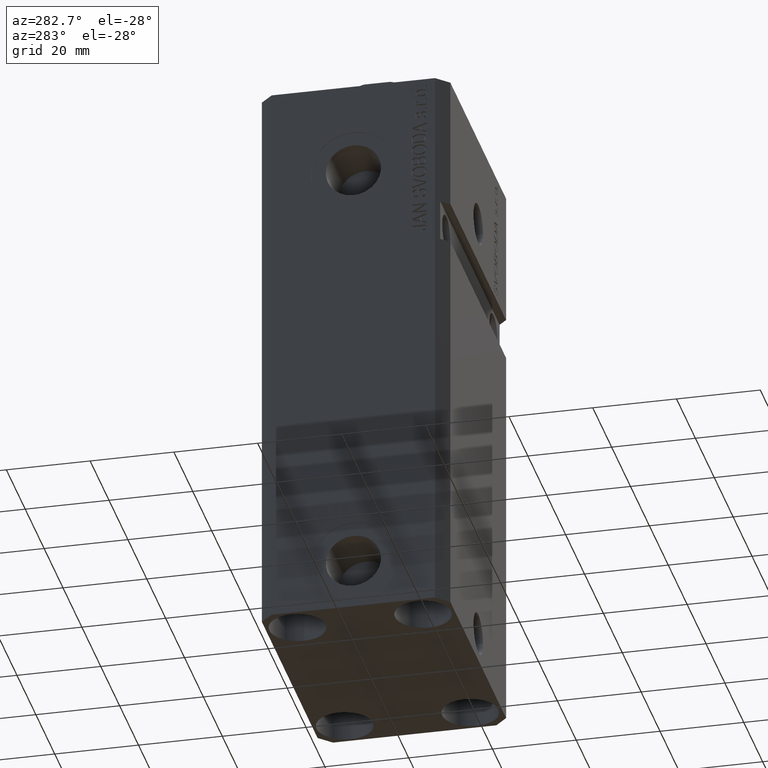
[diagram: clean part render]
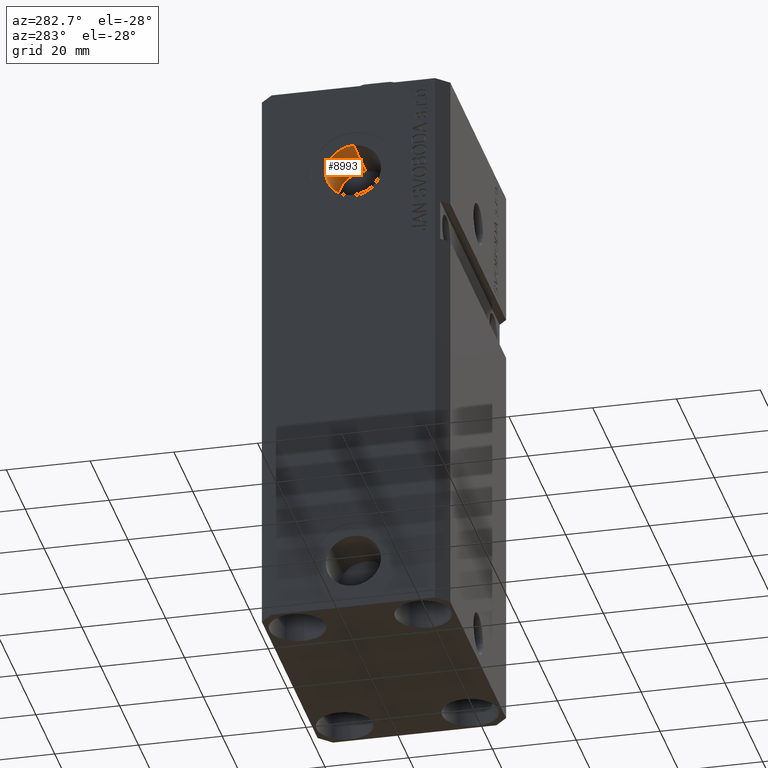
[diagram: same view with one face highlighted and labeled with its STEP entity id]
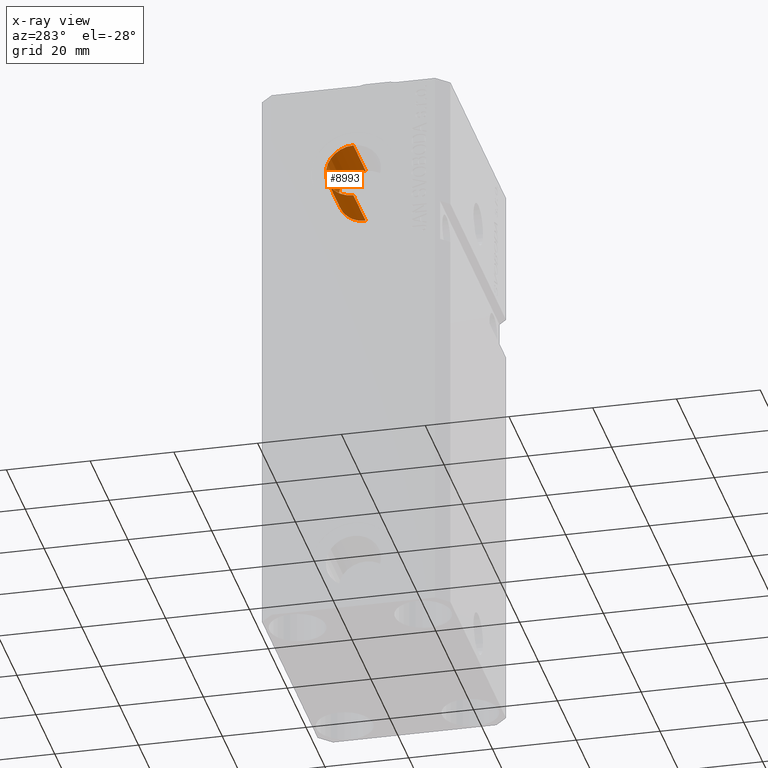
[diagram: x-ray of the same camera — body ghosted, the highlighted face saturated]
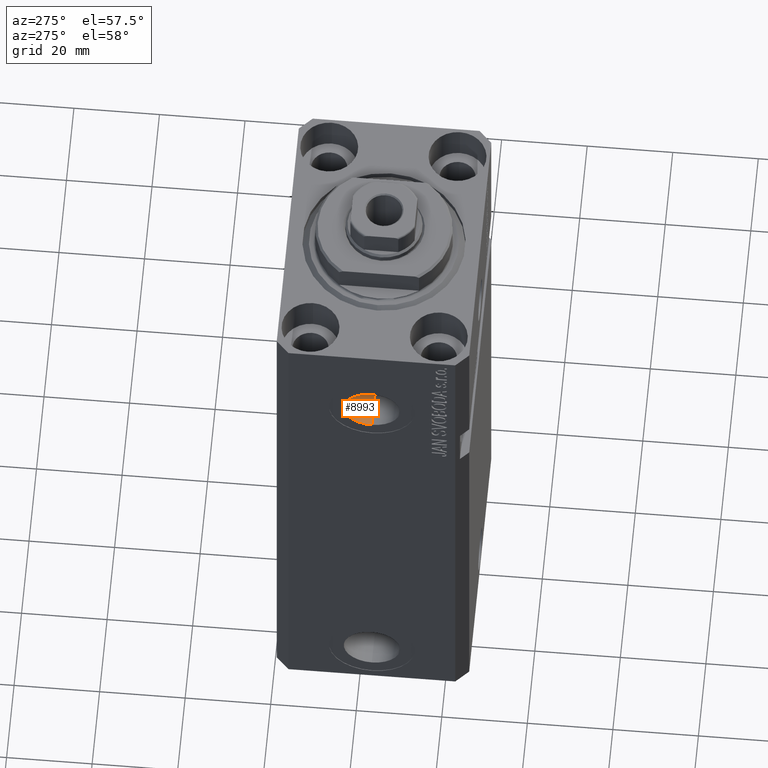
[diagram: same view with one face highlighted and labeled with its STEP entity id]
A machine part, auxiliary view. The second image highlights one B-rep face of the part: STEP entity #8993.
The next image is the same camera in x-ray: the body ghosted, the highlighted face saturated — about 0% of this face is hidden behind the body in this view.
A second angle (auxiliary view) of the same face is appended — the face is thin or edge-on in the first view.
In plain terms, the highlighted cylindrical surface (edge-blend (fillet) strip) has radius 6.58 mm, axis along (-1, -0, -0).
Its self-contained STEP definition (entity closure, byte-faithful):
#1513 = EDGE_CURVE ( 'NONE', #34380, #20980, #42684, .T. ) ;
#2543 = CARTESIAN_POINT ( 'NONE',  ( -32.39999999999650271, 8.058175938389579572E-16, -28.57999999999999829 ) ) ;
#3067 = ORIENTED_EDGE ( 'NONE', *, *, #1513, .T. ) ;
#3771 = VERTEX_POINT ( 'NONE', #16790 ) ;
#6576 = DIRECTION ( 'NONE',  ( -1.000000000000000000, -0.000000000000000000, -0.000000000000000000 ) ) ;
#6957 = VECTOR ( 'NONE', #30138, 1000.000000000000000 ) ;
#8993 = ADVANCED_FACE ( 'NONE', ( #27721 ), #13765, .F. ) ;
#9455 = CARTESIAN_POINT ( 'NONE',  ( -32.39999999999650271, 0.000000000000000000, -22.00000000000000000 ) ) ;
#11902 = ORIENTED_EDGE ( 'NONE', *, *, #40211, .F. ) ;
#12806 = CARTESIAN_POINT ( 'NONE',  ( -19.39999999999650271, 0.000000000000000000, -15.41999999999999993 ) ) ;
#12953 = AXIS2_PLACEMENT_3D ( 'NONE', #20104, #23474, #19667 ) ;
#13492 = DIRECTION ( 'NONE',  ( 0.000000000000000000, 0.000000000000000000, 1.000000000000000000 ) ) ;
#13765 = CYLINDRICAL_SURFACE ( 'NONE', #30001, 6.579999999999999183 ) ;
#16790 = CARTESIAN_POINT ( 'NONE',  ( -19.39999999999650271, 8.058175938389579572E-16, -28.57999999999999829 ) ) ;
#18706 = DIRECTION ( 'NONE',  ( -1.000000000000000000, -0.000000000000000000, -0.000000000000000000 ) ) ;
#19667 = DIRECTION ( 'NONE',  ( 0.000000000000000000, 0.000000000000000000, 1.000000000000000000 ) ) ;
#20104 = CARTESIAN_POINT ( 'NONE',  ( -19.39999999999650271, 0.000000000000000000, -22.00000000000000000 ) ) ;
#20260 = CARTESIAN_POINT ( 'NONE',  ( -32.39999999999650271, 0.000000000000000000, -15.41999999999999993 ) ) ;
#20980 = VERTEX_POINT ( 'NONE', #2543 ) ;
#21489 = CARTESIAN_POINT ( 'NONE',  ( -19.39999999999650271, 0.000000000000000000, -15.41999999999999993 ) ) ;
#23190 = DIRECTION ( 'NONE',  ( -1.000000000000000000, 0.000000000000000000, 0.000000000000000000 ) ) ;
#23474 = DIRECTION ( 'NONE',  ( -1.000000000000000000, 0.000000000000000000, 0.000000000000000000 ) ) ;
#24111 = DIRECTION ( 'NONE',  ( 0.000000000000000000, 0.000000000000000000, 1.000000000000000000 ) ) ;
#25773 = EDGE_CURVE ( 'NONE', #40184, #34380, #37497, .T. ) ;
#27721 = FACE_OUTER_BOUND ( 'NONE', #34425, .T. ) ;
#30001 = AXIS2_PLACEMENT_3D ( 'NONE', #30428, #6576, #24111 ) ;
#30107 = EDGE_CURVE ( 'NONE', #3771, #20980, #33068, .T. ) ;
#30138 = DIRECTION ( 'NONE',  ( -1.000000000000000000, -0.000000000000000000, -0.000000000000000000 ) ) ;
#30428 = CARTESIAN_POINT ( 'NONE',  ( -19.39999999999650271, 0.000000000000000000, -22.00000000000000000 ) ) ;
#30457 = ORIENTED_EDGE ( 'NONE', *, *, #25773, .T. ) ;
#32391 = CIRCLE ( 'NONE', #12953, 6.579999999999999183 ) ;
#33068 = LINE ( 'NONE', #43144, #39942 ) ;
#34380 = VERTEX_POINT ( 'NONE', #20260 ) ;
#34425 = EDGE_LOOP ( 'NONE', ( #40350, #11902, #30457, #3067 ) ) ;
#36225 = AXIS2_PLACEMENT_3D ( 'NONE', #9455, #23190, #13492 ) ;
#37497 = LINE ( 'NONE', #12806, #6957 ) ;
#39942 = VECTOR ( 'NONE', #18706, 1000.000000000000000 ) ;
#40184 = VERTEX_POINT ( 'NONE', #21489 ) ;
#40211 = EDGE_CURVE ( 'NONE', #40184, #3771, #32391, .T. ) ;
#40350 = ORIENTED_EDGE ( 'NONE', *, *, #30107, .F. ) ;
#42684 = CIRCLE ( 'NONE', #36225, 6.579999999999999183 ) ;
#43144 = CARTESIAN_POINT ( 'NONE',  ( -19.39999999999650271, 8.058175938389580558E-16, -28.57999999999999829 ) ) ;